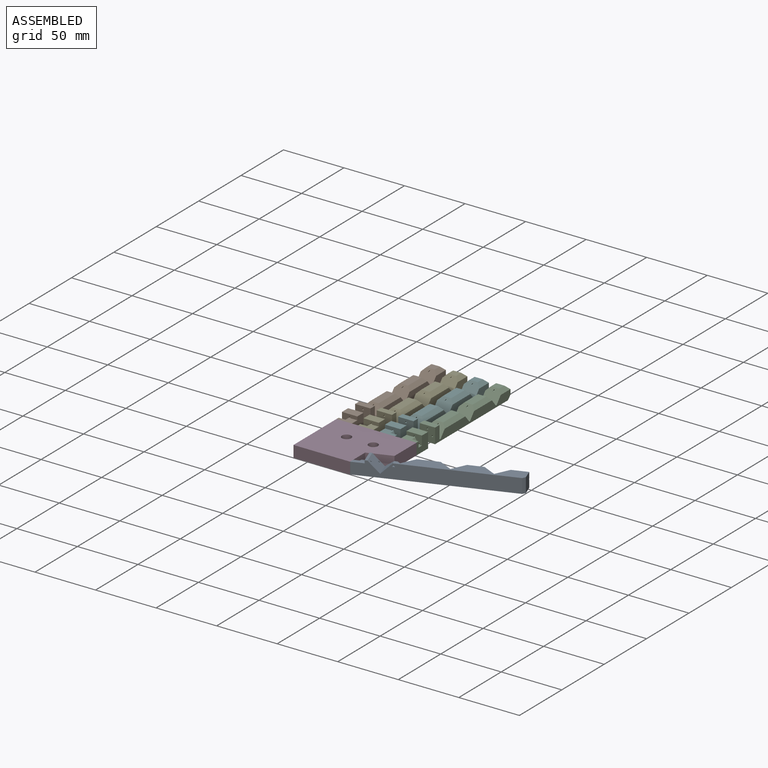
[diagram: assembled view]
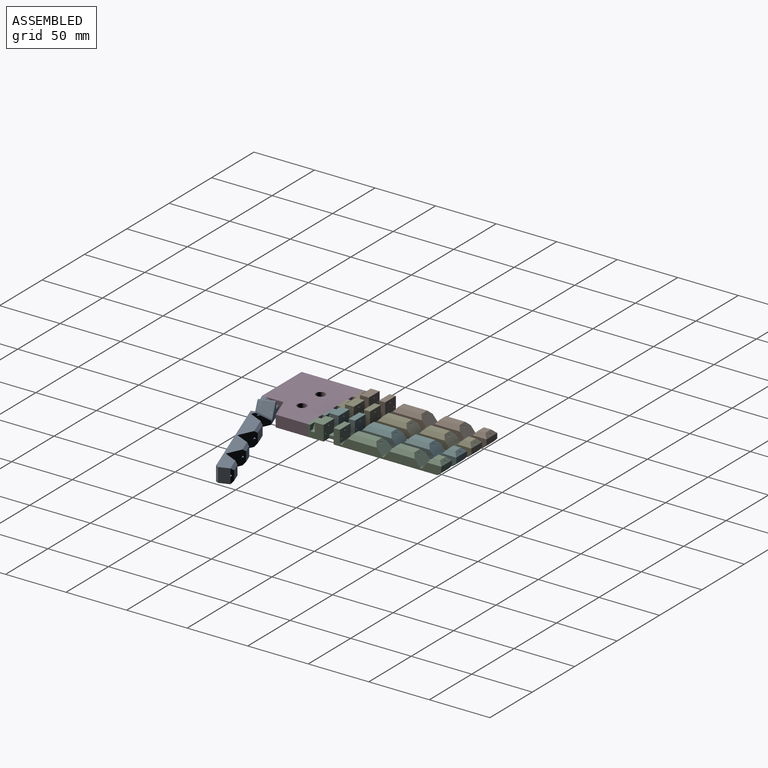
[diagram: assembled view, second angle]
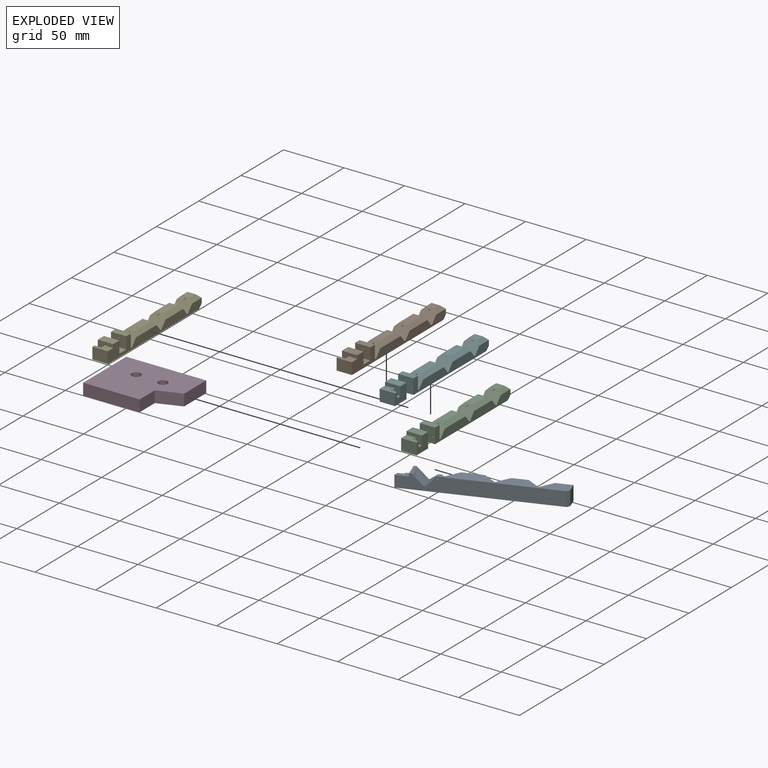
[diagram: exploded view]
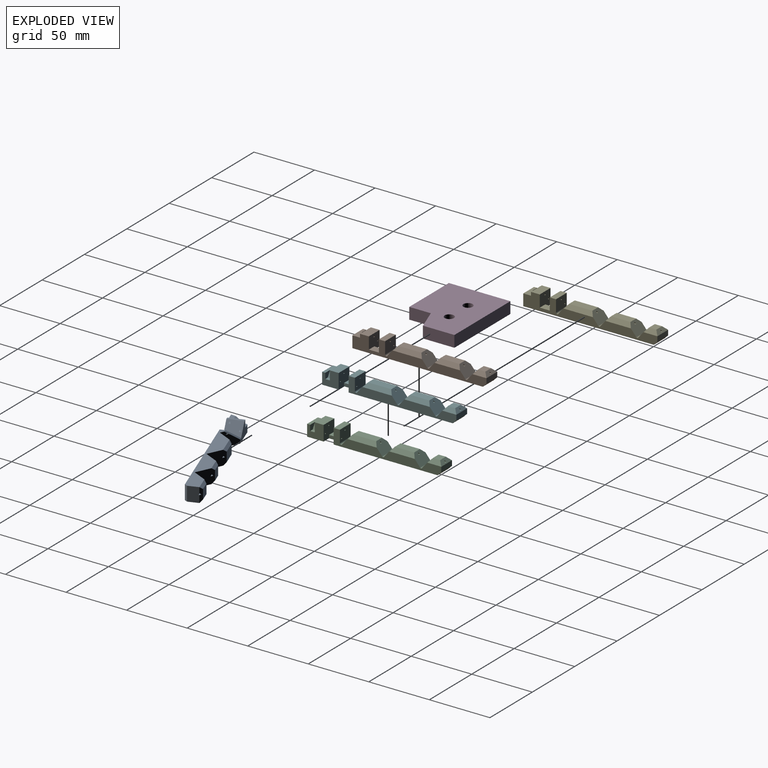
[diagram: exploded view, second angle]
ASSEMBLY  parts=6 mates=8
PART A: 47 faces, bbox 12.7x122.6x11.8 mm
  f0: plane 14.46x3.5mm, normal (0,0,1), area 39.8mm2, adj f3,f5,f6,f7,f32,f33,f45
  f1: plane 122.6x12.7mm, normal (0,0,-1), area 1075.5mm2, adj f4,f5,f9,f10,f12,f13,f15,f16
  f2: plane 14.38x2.55mm, normal (0,0,1), area 27.2mm2, adj f3,f6,f7,f16,f21,f22,f45
  f3: plane 8.89x6.65mm, normal (-0.48,0,0.88), area 58.1mm2, adj f0,f2,f6,f45
  f4: plane 11.83x11.2mm, normal (-0.71,0.71,0), area 131.2mm2, adj f1,f8,f15,f16,f35,f36,f46
  f5: plane 120.6x11.83mm, normal (1,0,0), area 1324.3mm2, adj f0,f1,f6,f7,f8,f19,f20,f34
  f6: plane 12.7x5.92mm, normal (0,-1,0), area 48.5mm2, adj f0,f2,f3,f5,f16,f19,f21,f22
  f7: plane 12.7x8.83mm, normal (0,0.71,0.71), area 155.8mm2, adj f0,f2,f5,f16,f19,f20,f21,f22
  f8: plane 92.78x10.7mm, normal (0,0,1), area 743.4mm2, adj f4,f5,f9,f10,f12,f13,f15,f17
  f9: plane 11.83x11.2mm, normal (-0.71,-0.71,0), area 180.3mm2, adj f1,f8,f10,f18,f23,f24,f25,f42
  f10: plane 11.83x11.2mm, normal (-0.71,0.71,0), area 180.3mm2, adj f1,f8,f9,f11,f29,f30,f31,f40
  f11: plane 8.21x7.83mm, normal (-1,0,0), area 64.3mm2, adj f10,f12,f40,f41
  f12: plane 11.83x11.2mm, normal (-0.71,-0.71,0), area 180.3mm2, adj f1,f8,f11,f13,f29,f30,f31,f40
  f13: plane 11.83x11.2mm, normal (-0.71,0.71,0), area 180.3mm2, adj f1,f8,f12,f14,f26,f27,f28,f37
  f14: plane 12.81x7.83mm, normal (-1,0,0), area 100.3mm2, adj f13,f15,f37,f38
  f15: plane 11.83x11.2mm, normal (-0.71,-0.71,0), area 180.3mm2, adj f1,f4,f8,f14,f26,f27,f28,f37
  f16: plane 18.83x11.83mm, normal (-1,0,0), area 129.3mm2, adj f1,f2,f4,f6,f7,f19,f20,f45
  f17: plane 11.83x8.7mm, normal (0,1,0), area 102.7mm2, adj f1,f8,f23,f24,f39,f43
  f18: plane 8.94x7.83mm, normal (-1,0,0), area 70mm2, adj f9,f42,f43,f44
  f19: plane 12.7x2mm, normal (0,0,1), area 25.4mm2, adj f5,f6,f7,f16
  f20: plane 12.7x8.83mm, normal (0,-0.71,0.71), area 103.6mm2, adj f5,f7,f8,f16,f46
  f21: plane 7.92x1.3mm, normal (-0.87,0,-0.5), area 10.9mm2, adj f2,f6,f7,f22
  f22: plane 7.92x1.3mm, normal (0.87,0,-0.5), area 10.9mm2, adj f2,f6,f7,f21
  f23: plane 13.48x1.3mm, normal (-0.87,0,-0.5), area 19.6mm2, adj f9,f17,f24,f25,f43
  f24: plane 13.48x1.5mm, normal (0,0,1), area 18.6mm2, adj f9,f17,f23,f25,f43
  f25: plane 12.53x1.3mm, normal (0.87,0,-0.5), area 17.7mm2, adj f9,f23,f24,f43
  f26: plane 17.91x1.3mm, normal (-0.87,0,-0.5), area 25.7mm2, adj f13,f15,f27,f28
  f27: plane 17.91x1.5mm, normal (0,0,1), area 24.6mm2, adj f13,f15,f26,f28
  f28: plane 16.41x1.3mm, normal (0.87,0,-0.5), area 23.5mm2, adj f13,f15,f26,f27
  f29: plane 11.8x1.3mm, normal (0.87,0,-0.5), area 16.6mm2, adj f10,f12,f30,f31
  f30: plane 13.3x1.5mm, normal (0,0,1), area 17.7mm2, adj f10,f12,f29,f31
  f31: plane 13.3x1.3mm, normal (-0.87,0,-0.5), area 18.8mm2, adj f10,f12,f29,f30
  f32: plane 4.3x1.3mm, normal (0.87,0,-0.5), area 5.5mm2, adj f0,f6,f7,f33
  f33: plane 4.3x1.3mm, normal (-0.87,0,-0.5), area 5.5mm2, adj f0,f6,f7,f32
  f34: plane 6.44x1.06mm, normal (0,0.71,-0.71), area 8.9mm2, adj f5,f35,f36,f46
  f35: plane 6.44x2.12mm, normal (0,0,1), area 12.1mm2, adj f4,f5,f34,f36,f46
  f36: plane 5.54x1.06mm, normal (0,-0.71,-0.71), area 7.7mm2, adj f4,f5,f34,f35,f46
  f37: plane 16.81x2mm, normal (-0.71,0,-0.71), area 41.9mm2, adj f1,f13,f14,f15
  f38: plane 16.81x2mm, normal (-0.71,0,0.71), area 41.9mm2, adj f8,f13,f14,f15
  f39: plane 11.83x2mm, normal (0.71,0.71,0), area 33.5mm2, adj f1,f5,f8,f17
  f40: plane 12.21x2mm, normal (-0.71,0,-0.71), area 28.9mm2, adj f1,f10,f11,f12
  f41: plane 12.21x2mm, normal (-0.71,0,0.71), area 28.9mm2, adj f8,f10,f11,f12
  f42: plane 12.94x2mm, normal (-0.71,0,0.71), area 30.9mm2, adj f8,f9,f18,f43
  f43: plane 11.83x2mm, normal (-0.71,0.71,0), area 26.8mm2, adj f17,f18,f23,f24,f25,f42,f44
  f44: plane 12.94x2mm, normal (-0.71,0,-0.71), area 30.9mm2, adj f1,f9,f18,f43
  f45: plane 12.7x9.53mm, normal (-0.34,-0.94,0), area 106.2mm2, adj f0,f1,f2,f3,f5,f16
  f46: plane 11.27x8.82mm, normal (-0.71,0,0.71), area 30.1mm2, adj f4,f8,f16,f20,f34,f35,f36
PART B: 56 faces, bbox 12.7x110.8x12.4 mm
  f0: plane 12.7x7.49mm, normal (0,-1,0), area 54.2mm2, adj f2,f20,f21,f41,f42,f43,f47,f48
  f1: plane 8.26x6.35mm, normal (0,0,1), area 52.4mm2, adj f18,f19,f21,f23
  f2: plane 13.61x12.38mm, normal (-1,0,0), area 132.8mm2, adj f0,f3,f19,f20,f41,f47,f54,f55
  f3: plane 107.77x12.7mm, normal (0,0,-1), area 1316.2mm2, adj f2,f18,f19,f21,f22,f23,f33,f54
  f4: plane 12.7x4.16mm, normal (0,1,0), area 52.8mm2, adj f21,f22,f33,f39
  f5: plane 6.7x5.97mm, normal (0,0,1), area 40mm2, adj f6,f38,f39,f40
  f6: plane 12.7x8.3mm, normal (0,-0.77,0.64), area 124.6mm2, adj f5,f7,f21,f22,f30,f31,f32,f38
  f7: cylinder r=1mm len=12.7mm, axis (-1,0,0), area 22.2mm2, adj f6,f8,f21,f22
  f8: plane 12.7x8.3mm, normal (0,0.77,0.64), area 124.6mm2, adj f7,f9,f21,f22,f27,f28,f29,f36
  f9: plane 15.92x6.7mm, normal (0,0,1), area 106.7mm2, adj f8,f10,f36,f37
  f10: plane 12.7x8.3mm, normal (0,-0.77,0.64), area 124.6mm2, adj f9,f11,f21,f22,f27,f28,f29,f36
  f11: cylinder r=1mm len=12.7mm, axis (-1,0,0), area 22.2mm2, adj f10,f12,f21,f22
  f12: plane 12.7x8.3mm, normal (0,0.77,0.64), area 124.6mm2, adj f11,f13,f21,f22,f24,f25,f26,f34
  f13: plane 19.19x6.7mm, normal (0,0,1), area 128.5mm2, adj f12,f14,f34,f35
  f14: plane 12.7x8.3mm, normal (0,-0.77,0.64), area 124.6mm2, adj f13,f15,f21,f22,f24,f25,f26,f34
  f15: cylinder r=1mm len=12.7mm, axis (-1,0,0), area 31mm2, adj f14,f16,f21,f22
  f16: plane 12.7x9.88mm, normal (0,1,0), area 123.5mm2, adj f15,f17,f21,f22,f44,f45,f46,f50
  f17: plane 12.7x5.16mm, normal (0,0,1), area 65.5mm2, adj f16,f18,f21,f22
  f18: plane 12.7x12.38mm, normal (0,-1,0), area 139.2mm2, adj f1,f3,f17,f21,f22,f23,f44,f45
  f19: plane 12.7x12.38mm, normal (0,1,0), area 139.2mm2, adj f1,f2,f3,f20,f21,f23,f41,f42
  f20: plane 12.7x7.26mm, normal (0,0,1), area 92.2mm2, adj f0,f2,f19,f21
  f21: plane 110.77x12.38mm, normal (1,0,0), area 744.7mm2, adj f0,f1,f3,f4,f6,f7,f8,f10
  f22: plane 88.9x12.38mm, normal (-1,0,0), area 573.3mm2, adj f3,f4,f6,f7,f8,f10,f11,f12
  f23: plane 8.26x2.54mm, normal (-1,0,0), area 21mm2, adj f1,f3,f18,f19
  f24: plane 23.04x1.5mm, normal (0,0,1), area 34.6mm2, adj f12,f14,f25,f26
  f25: plane 23.04x1.3mm, normal (0.87,0,-0.5), area 32.9mm2, adj f12,f14,f24,f26
  f26: plane 23.04x1.3mm, normal (-0.87,0,-0.5), area 32.9mm2, adj f12,f14,f24,f25
  f27: plane 19.78x1.5mm, normal (0,0,1), area 29.7mm2, adj f8,f10,f28,f29
  f28: plane 19.78x1.3mm, normal (0.87,0,-0.5), area 28mm2, adj f8,f10,f27,f29
  f29: plane 19.78x1.3mm, normal (-0.87,0,-0.5), area 28mm2, adj f8,f10,f27,f28
  f30: plane 10.2x1.3mm, normal (-0.87,0,-0.5), area 13.5mm2, adj f6,f31,f32,f39
  f31: plane 10.2x1.3mm, normal (0.87,0,-0.5), area 13.5mm2, adj f6,f30,f32,f39
  f32: plane 10.2x1.5mm, normal (0,0,1), area 15.3mm2, adj f6,f30,f31,f39
  f33: plane 12.7x3mm, normal (0,0.71,-0.71), area 53.9mm2, adj f3,f4,f21,f22
  f34: plane 24.22x3mm, normal (0.71,0,0.71), area 92.1mm2, adj f12,f13,f14,f21
  f35: plane 24.22x3mm, normal (-0.71,0,0.71), area 92.1mm2, adj f12,f13,f14,f22
  f36: plane 20.96x3mm, normal (0.71,0,0.71), area 78.2mm2, adj f8,f9,f10,f21
  f37: plane 20.96x3mm, normal (-0.71,0,0.71), area 78.2mm2, adj f8,f9,f10,f22
  f38: plane 11.49x3mm, normal (-0.71,0,0.71), area 37mm2, adj f5,f6,f22,f39
  f39: plane 12.7x3mm, normal (0,0.71,0.71), area 39.8mm2, adj f4,f5,f30,f31,f32,f38,f40
  f40: plane 11.49x3mm, normal (0.71,0,0.71), area 37mm2, adj f5,f6,f21,f39
  f41: plane 11.07x3mm, normal (0,0,1), area 22.3mm2, adj f0,f2,f19,f42,f43,f53,f55
  f42: plane 7.26x1.3mm, normal (0.87,0,-0.5), area 10.9mm2, adj f0,f19,f41,f43
  f43: plane 7.26x1.3mm, normal (-0.87,0,-0.5), area 10.9mm2, adj f0,f19,f41,f42
  f44: plane 5.16x1.3mm, normal (-0.87,0,-0.5), area 7.7mm2, adj f16,f18,f45,f46
  f45: plane 5.16x1.3mm, normal (0.87,0,-0.5), area 7.7mm2, adj f16,f18,f44,f46
  f46: plane 5.16x1.5mm, normal (0,0,1), area 7.7mm2, adj f16,f18,f44,f45
  f47: plane 13.61x12.7mm, normal (0,0,1), area 70.2mm2, adj f0,f2,f19,f21,f48,f49,f53,f54
  f48: plane 7.26x1.3mm, normal (0.87,0,-0.5), area 10.9mm2, adj f0,f19,f47,f49
  f49: plane 7.26x1.3mm, normal (-0.87,0,-0.5), area 10.9mm2, adj f0,f19,f47,f48
  f50: plane 5.16x1.3mm, normal (-0.87,0,-0.5), area 7.7mm2, adj f16,f18,f51,f52
  f51: plane 5.16x1.3mm, normal (0.87,0,-0.5), area 7.7mm2, adj f16,f18,f50,f52
  f52: plane 5.16x1.5mm, normal (0,0,1), area 7.7mm2, adj f16,f18,f50,f51
  f53: plane 4.64x3.81mm, normal (-0.87,0,0.49), area 20.3mm2, adj f0,f41,f47,f55
  f54: plane 12.7x9.53mm, normal (0,-1,0), area 121.1mm2, adj f2,f3,f21,f47
  f55: plane 5.6x4.64mm, normal (0,1,0), area 20mm2, adj f2,f41,f47,f53
PART C: 56 faces, bbox 12.7x110.8x12.4 mm
  f0: plane 12.7x7.49mm, normal (0,-1,0), area 54.2mm2, adj f2,f20,f21,f41,f42,f43,f47,f48
  f1: plane 8.26x6.35mm, normal (0,0,1), area 52.4mm2, adj f18,f19,f21,f23
  f2: plane 13.61x12.38mm, normal (1,0,0), area 132.8mm2, adj f0,f3,f19,f20,f41,f47,f54,f55
  f3: plane 107.77x12.7mm, normal (0,0,-1), area 1316.2mm2, adj f2,f18,f19,f21,f22,f23,f33,f54
  f4: plane 12.7x4.16mm, normal (0,1,0), area 52.8mm2, adj f21,f22,f33,f39
  f5: plane 6.7x5.97mm, normal (0,0,1), area 40mm2, adj f6,f38,f39,f40
  f6: plane 12.7x8.3mm, normal (0,-0.77,0.64), area 124.6mm2, adj f5,f7,f21,f22,f30,f31,f32,f38
  f7: cylinder r=1mm len=12.7mm, axis (1,0,0), area 22.2mm2, adj f6,f8,f21,f22
  f8: plane 12.7x8.3mm, normal (0,0.77,0.64), area 124.6mm2, adj f7,f9,f21,f22,f27,f28,f29,f36
  f9: plane 15.92x6.7mm, normal (0,0,1), area 106.7mm2, adj f8,f10,f36,f37
  f10: plane 12.7x8.3mm, normal (0,-0.77,0.64), area 124.6mm2, adj f9,f11,f21,f22,f27,f28,f29,f36
  f11: cylinder r=1mm len=12.7mm, axis (1,0,0), area 22.2mm2, adj f10,f12,f21,f22
  f12: plane 12.7x8.3mm, normal (0,0.77,0.64), area 124.6mm2, adj f11,f13,f21,f22,f24,f25,f26,f34
  f13: plane 19.19x6.7mm, normal (0,0,1), area 128.5mm2, adj f12,f14,f34,f35
  f14: plane 12.7x8.3mm, normal (0,-0.77,0.64), area 124.6mm2, adj f13,f15,f21,f22,f24,f25,f26,f34
  f15: cylinder r=1mm len=12.7mm, axis (1,0,0), area 31mm2, adj f14,f16,f21,f22
  f16: plane 12.7x9.88mm, normal (0,1,0), area 123.5mm2, adj f15,f17,f21,f22,f44,f45,f46,f50
  f17: plane 12.7x5.16mm, normal (0,0,1), area 65.5mm2, adj f16,f18,f21,f22
  f18: plane 12.7x12.38mm, normal (0,-1,0), area 139.2mm2, adj f1,f3,f17,f21,f22,f23,f44,f45
  f19: plane 12.7x12.38mm, normal (0,1,0), area 139.2mm2, adj f1,f2,f3,f20,f21,f23,f41,f42
  f20: plane 12.7x7.26mm, normal (0,0,1), area 92.2mm2, adj f0,f2,f19,f21
  f21: plane 110.77x12.38mm, normal (-1,0,0), area 744.7mm2, adj f0,f1,f3,f4,f6,f7,f8,f10
  f22: plane 88.9x12.38mm, normal (1,0,0), area 573.3mm2, adj f3,f4,f6,f7,f8,f10,f11,f12
  f23: plane 8.26x2.54mm, normal (1,0,0), area 21mm2, adj f1,f3,f18,f19
  f24: plane 23.04x1.5mm, normal (0,0,1), area 34.6mm2, adj f12,f14,f25,f26
  f25: plane 23.04x1.3mm, normal (-0.87,0,-0.5), area 32.9mm2, adj f12,f14,f24,f26
  f26: plane 23.04x1.3mm, normal (0.87,0,-0.5), area 32.9mm2, adj f12,f14,f24,f25
  f27: plane 19.78x1.5mm, normal (0,0,1), area 29.7mm2, adj f8,f10,f28,f29
  f28: plane 19.78x1.3mm, normal (-0.87,0,-0.5), area 28mm2, adj f8,f10,f27,f29
  f29: plane 19.78x1.3mm, normal (0.87,0,-0.5), area 28mm2, adj f8,f10,f27,f28
  f30: plane 10.2x1.3mm, normal (0.87,0,-0.5), area 13.5mm2, adj f6,f31,f32,f39
  f31: plane 10.2x1.3mm, normal (-0.87,0,-0.5), area 13.5mm2, adj f6,f30,f32,f39
  f32: plane 10.2x1.5mm, normal (0,0,1), area 15.3mm2, adj f6,f30,f31,f39
  f33: plane 12.7x3mm, normal (0,0.71,-0.71), area 53.9mm2, adj f3,f4,f21,f22
  f34: plane 24.22x3mm, normal (-0.71,0,0.71), area 92.1mm2, adj f12,f13,f14,f21
  f35: plane 24.22x3mm, normal (0.71,0,0.71), area 92.1mm2, adj f12,f13,f14,f22
  f36: plane 20.96x3mm, normal (-0.71,0,0.71), area 78.2mm2, adj f8,f9,f10,f21
  f37: plane 20.96x3mm, normal (0.71,0,0.71), area 78.2mm2, adj f8,f9,f10,f22
  f38: plane 11.49x3mm, normal (0.71,0,0.71), area 37mm2, adj f5,f6,f22,f39
  f39: plane 12.7x3mm, normal (0,0.71,0.71), area 39.8mm2, adj f4,f5,f30,f31,f32,f38,f40
  f40: plane 11.49x3mm, normal (-0.71,0,0.71), area 37mm2, adj f5,f6,f21,f39
  f41: plane 11.07x3mm, normal (0,0,1), area 22.3mm2, adj f0,f2,f19,f42,f43,f53,f55
  f42: plane 7.26x1.3mm, normal (-0.87,0,-0.5), area 10.9mm2, adj f0,f19,f41,f43
  f43: plane 7.26x1.3mm, normal (0.87,0,-0.5), area 10.9mm2, adj f0,f19,f41,f42
  f44: plane 5.16x1.3mm, normal (0.87,0,-0.5), area 7.7mm2, adj f16,f18,f45,f46
  f45: plane 5.16x1.3mm, normal (-0.87,0,-0.5), area 7.7mm2, adj f16,f18,f44,f46
  f46: plane 5.16x1.5mm, normal (0,0,1), area 7.7mm2, adj f16,f18,f44,f45
  f47: plane 13.61x12.7mm, normal (0,0,1), area 70.2mm2, adj f0,f2,f19,f21,f48,f49,f53,f54
  f48: plane 7.26x1.3mm, normal (-0.87,0,-0.5), area 10.9mm2, adj f0,f19,f47,f49
  f49: plane 7.26x1.3mm, normal (0.87,0,-0.5), area 10.9mm2, adj f0,f19,f47,f48
  f50: plane 5.16x1.3mm, normal (0.87,0,-0.5), area 7.7mm2, adj f16,f18,f51,f52
  f51: plane 5.16x1.3mm, normal (-0.87,0,-0.5), area 7.7mm2, adj f16,f18,f50,f52
  f52: plane 5.16x1.5mm, normal (0,0,1), area 7.7mm2, adj f16,f18,f50,f51
  f53: plane 4.64x3.81mm, normal (0.87,0,0.49), area 20.3mm2, adj f0,f41,f47,f55
  f54: plane 12.7x9.53mm, normal (0,-1,0), area 121.1mm2, adj f2,f3,f21,f47
  f55: plane 5.6x4.64mm, normal (0,1,0), area 20mm2, adj f2,f41,f47,f53
PART D: 10 faces, bbox 66x50.8x9.5 mm
  f0: plane 66.04x9.53mm, normal (0,1,0), area 629.6mm2, adj f1,f6,f8,f9
  f1: plane 50.8x9.53mm, normal (-1,0,0), area 484.3mm2, adj f0,f2,f8,f9
  f2: plane 46.68x9.53mm, normal (0,-1,0), area 445.1mm2, adj f1,f3,f8,f9
  f3: plane 17.78x9.53mm, normal (1,0,0), area 169.5mm2, adj f2,f4,f8,f9
  f4: plane 19.36x9.53mm, normal (0.34,-0.94,0), area 196.4mm2, adj f3,f6,f8,f9
  f5: cylinder r=3.81mm len=9.53mm, axis (0,0,-1), area 228.2mm2, adj f8,f9
  f6: plane 25.97x9.53mm, normal (1,0,0), area 247.6mm2, adj f0,f4,f8,f9
  f7: cylinder r=3.81mm len=9.53mm, axis (0,0,-1), area 228.2mm2, adj f8,f9
  f8: plane 66.04x50.8mm, normal (0,0,1), area 2851.3mm2, adj f0,f1,f2,f3,f4,f5,f6,f7
  f9: plane 66.04x50.8mm, normal (0,0,-1), area 2851.3mm2, adj f0,f1,f2,f3,f4,f5,f6,f7
PART E: same geometry as B
PART F: same geometry as C
PLACE A rot(axis=(0,0,-1),70deg) t=(54.57,13.37,0.02)mm
PLACE B t=(-7.5,51.34,0.02)mm
PLACE C t=(58.54,51.34,0.02)mm
PLACE D t=(-7.5,-5.81,0.02)mm fixed
PLACE E t=(10.28,51.34,0.02)mm
PLACE F t=(40.76,51.34,0.02)mm
MATE planar D.f3 <-> A.f45  axis (1,0,0) through (39.18,3.08,4.79)mm
MATE planar D.f9 <-> A.f1  axis (0,0,-1) through (22.06,21.52,0.02)mm
MATE planar C.f2 <-> D.f6  axis (1,0,0) through (58.54,52.61,5.43)mm
MATE planar B.f3 <-> D.f9  axis (0,0,-1) through (-1.03,100.31,0.02)mm
MATE planar B.f2 <-> D.f1  axis (-1,0,0) through (-7.5,52.61,5.43)mm
MATE planar C.f3 <-> D.f9  axis (0,0,-1) through (52.06,100.31,0.02)mm
MATE planar B.f54 <-> D.f0  axis (0,-1,0) through (-1.15,44.99,4.79)mm
MATE planar D.f0 <-> C.f54  axis (0,1,0) through (25.52,44.99,4.79)mm
